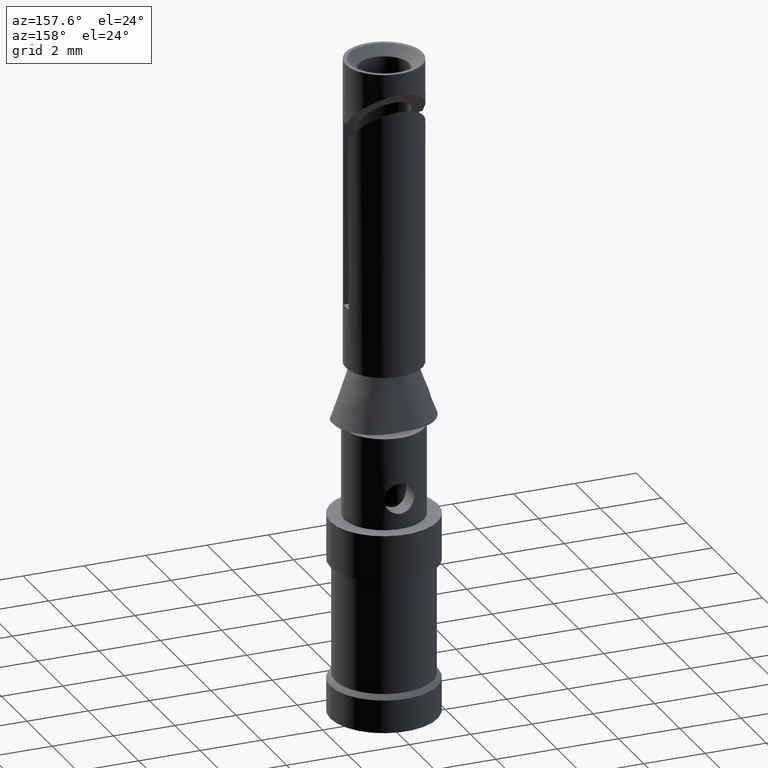
[diagram: clean part render]
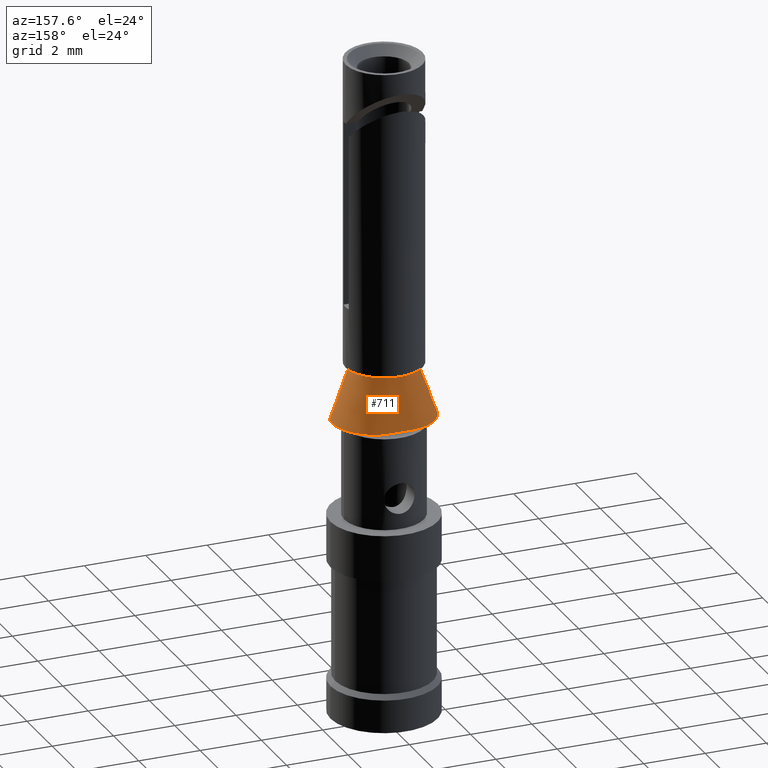
[diagram: same view with one face highlighted and labeled with its STEP entity id]
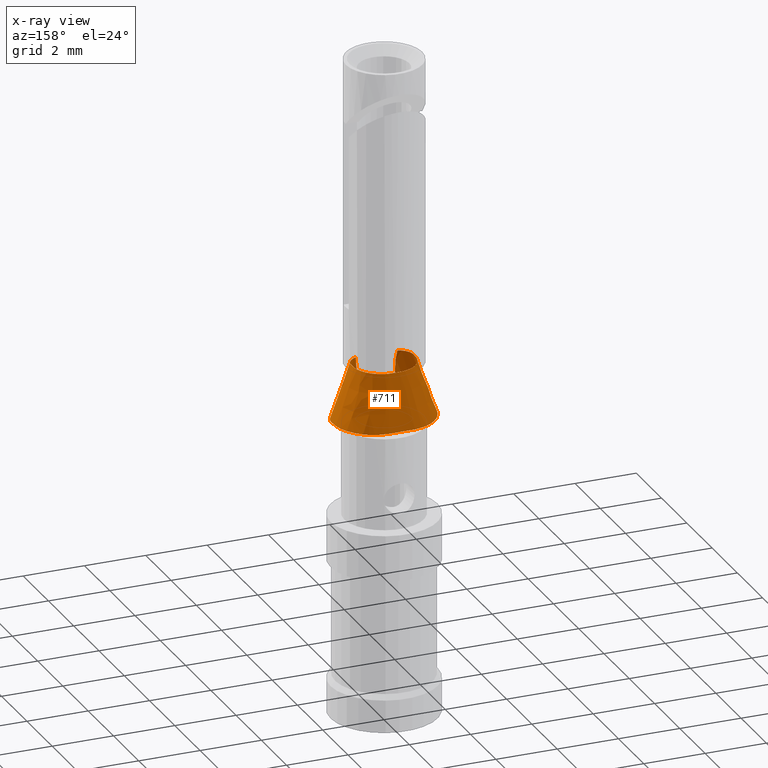
[diagram: x-ray of the same camera — body ghosted, the highlighted face saturated]
A machine part, auxiliary view. The second image highlights one B-rep face of the part: STEP entity #711.
The next image is the same camera in x-ray: the body ghosted, the highlighted face saturated — about 0% of this face is hidden behind the body in this view.
In plain terms, the highlighted face is a freeform B-spline surface patch.
Its self-contained STEP definition (entity closure, byte-faithful):
#4 = CARTESIAN_POINT ( 'NONE',  ( -0.6244022984149972810, -0.6482297917234206563, 10.90345162828931969 ) ) ;
#14 = CARTESIAN_POINT ( 'NONE',  ( -0.5658760747165321181, -0.6998458887951046759, 9.700000000000001066 ) ) ;
#15 = ORIENTED_EDGE ( 'NONE', *, *, #311, .F. ) ;
#19 = CARTESIAN_POINT ( 'NONE',  ( -1.649999999999999911, 0.3268315261956850071, 9.700000000000001066 ) ) ;
#27 = CARTESIAN_POINT ( 'NONE',  ( -0.2792942951470929747, 1.174204856776269956, 10.30000000000000071 ) ) ;
#36 = CARTESIAN_POINT ( 'NONE',  ( 1.211129613708889829, -0.3585829456435519758, 10.90000000000000036 ) ) ;
#44 = CARTESIAN_POINT ( 'NONE',  ( 0.1560608832207900087, 1.173281074190819950, 10.30000000000000071 ) ) ;
#53 = CARTESIAN_POINT ( 'NONE',  ( 1.631243486798419795, -0.4066521322335029942, 9.700000000000001066 ) ) ;
#59 = CARTESIAN_POINT ( 'NONE',  ( 0.1039459542717249968, 0.9195016958537209906, 11.50000000000000000 ) ) ;
#70 = CARTESIAN_POINT ( 'NONE',  ( 0.009583600286545628649, 0.9200648597531140283, 11.50000000000000000 ) ) ;
#73 = EDGE_CURVE ( 'NONE', #612, #1268, #117, .T. ) ;
#82 = CARTESIAN_POINT ( 'NONE',  ( 0.5982743427678378634, -0.6725986097916674122, 10.30109455095021254 ) ) ;
#88 = CARTESIAN_POINT ( 'NONE',  ( -1.018238251023239949, -0.2168791808858910042, 11.50000000000000000 ) ) ;
#94 = CARTESIAN_POINT ( 'NONE',  ( -0.9548426112374689412, -0.4071004788180560552, 11.50000000000000000 ) ) ;
#102 = CARTESIAN_POINT ( 'NONE',  ( -0.2910966783252240120, -0.6195964471698479636, 11.50000000000000000 ) ) ;
#114 = CARTESIAN_POINT ( 'NONE',  ( -0.5988719280515368837, -0.6720806211479675163, 10.30143877525372531 ) ) ;
#116 = CARTESIAN_POINT ( 'NONE',  ( -1.649999999999999911, -0.04926770854690139950, 9.700000000000001066 ) ) ;
#117 = B_SPLINE_CURVE_WITH_KNOTS ( 'NONE', 3,
 ( #608, #1152, #1710, #1021, #204, #331, #881, #1129, #751, #1300, #59, #1310, #70, #1688, #446, #995, #1551, #309, #856, #496, #1766, #898, #88, #234, #776, #804, #377 ),
 .UNSPECIFIED., .F., .F.,
 ( 4, 1, 1, 1, 1, 1, 1, 1, 1, 1, 1, 1, 1, 1, 1, 1, 1, 3, 1, 1, 1, 1, 4 ),
 ( 0.3685130491978392819, 0.3750000000000000000, 0.4375000000000000000, 0.4531250000000000000, 0.4687500000000000000, 0.5000000000000000000, 0.6250000000000000000, 0.6875000000000000000, 0.7031250000000000000, 0.7109375000000000000, 0.7187500000000000000, 0.7343750000000000000, 0.7500000000000000000, 0.7656250000000000000, 0.7812500000000000000, 0.8125000000000000000, 0.8750000000000000000, 1.000000000000000000, 1.015625000000000000, 1.031250000000000000, 1.062500000000000000, 1.093750000000000000, 1.106472548075097206 ),
 .UNSPECIFIED. ) ;
#126 = CARTESIAN_POINT ( 'NONE',  ( 0.3480592203850630395, 1.300148163450970173, 9.700000000000001066 ) ) ;
#143 = CARTESIAN_POINT ( 'NONE',  ( 0.4180002148475495116, -0.6725244066525949416, 10.30000000000000071 ) ) ;
#162 = CARTESIAN_POINT ( 'NONE',  ( 1.022686396354649974, -0.1346332957655959894, 11.50000000000000000 ) ) ;
#169 = CARTESIAN_POINT ( 'NONE',  ( 1.643062830313819944, 0.4340814706521929911, 9.700000000000001066 ) ) ;
#171 = CARTESIAN_POINT ( 'NONE',  ( 0.5664768010159152434, -0.6993597314049295743, 9.700000000000001066 ) ) ;
#175 = CARTESIAN_POINT ( 'NONE',  ( 1.232546278004489793, -0.1637888557281670099, 10.90000000000000036 ) ) ;
#185 = CARTESIAN_POINT ( 'NONE',  ( 0.1561489339925000164, 0.9180125344369129969, 11.50000000000000000 ) ) ;
#187 = CARTESIAN_POINT ( 'NONE',  ( 1.631243486798419795, -0.4066521322335029942, 9.700000000000001066 ) ) ;
#191 = CARTESIAN_POINT ( 'NONE',  ( -0.2222140538853039915, 0.9162529930834820702, 11.50000000000000000 ) ) ;
#199 = CARTESIAN_POINT ( 'NONE',  ( -0.4245828405835719854, -0.6733705083145489212, 10.30000000000000071 ) ) ;
#202 = CARTESIAN_POINT ( 'NONE',  ( 0.6760865591387643647, -0.5940597314681328456, 11.50000000000000000 ) ) ;
#204 = CARTESIAN_POINT ( 'NONE',  ( 1.022686396354649974, -0.1346332957655959894, 11.50000000000000000 ) ) ;
#207 = CARTESIAN_POINT ( 'NONE',  ( 0.6396295015618354007, -0.6332466117479136347, 11.20294166613913056 ) ) ;
#219 = CARTESIAN_POINT ( 'NONE',  ( -1.649877777813280044, -0.1551038747422870123, 9.700000000000001066 ) ) ;
#229 = CARTESIAN_POINT ( 'NONE',  ( -0.5233944830676459103, -0.6729297805031819735, 10.30000000000000071 ) ) ;
#234 = CARTESIAN_POINT ( 'NONE',  ( -0.9548426112374689412, -0.4071004788180560552, 11.50000000000000000 ) ) ;
#240 = CARTESIAN_POINT ( 'NONE',  ( -0.4163436216142530344, -0.6734050441453509617, 10.30000000000000071 ) ) ;
#253 = CARTESIAN_POINT ( 'NONE',  ( 1.001072677164130065, -0.3345483523485759947, 11.50000000000000000 ) ) ;
#264 = CARTESIAN_POINT ( 'NONE',  ( 0.6034894535520628489, -0.6993315033499739597, 9.700000000000001066 ) ) ;
#274 = CARTESIAN_POINT ( 'NONE',  ( 0.6113974843971728967, -0.6125158618111470332, 11.50000000000000000 ) ) ;
#276 = CARTESIAN_POINT ( 'NONE',  ( 0.6610084573967829336, 1.278029789696679908, 9.700000000000001066 ) ) ;
#285 = CARTESIAN_POINT ( 'NONE',  ( -0.8212958523622398976, -0.6986370208288135153, 9.700000000000001066 ) ) ;
#299 = CARTESIAN_POINT ( 'NONE',  ( 1.239906284936720171, 1.081614856832410210, 9.700000000000001066 ) ) ;
#306 = CARTESIAN_POINT ( 'NONE',  ( 0.04088616067789689612, 1.299940734619609906, 9.700000000000001066 ) ) ;
#309 = CARTESIAN_POINT ( 'NONE',  ( -0.8606088899624290134, 0.6428414602862450034, 11.50000000000000000 ) ) ;
#311 = EDGE_CURVE ( 'NONE', #1257, #1456, #572, .T. ) ;
#314 = CARTESIAN_POINT ( 'NONE',  ( -1.020000000000000018, 0.2312961570000230116, 11.50000000000000000 ) ) ;
#319 = CARTESIAN_POINT ( 'NONE',  ( 0.1853170429761709925, 1.046383851719470126, 10.90000000000000036 ) ) ;
#323 = CARTESIAN_POINT ( 'NONE',  ( 0.5664768010159152434, -0.6993597314049295743, 9.700000000000001066 ) ) ;
#328 = CARTESIAN_POINT ( 'NONE',  ( 1.652266041304170097, -0.2220999756533099945, 9.700000000000001066 ) ) ;
#331 = CARTESIAN_POINT ( 'NONE',  ( 1.018629800308839872, -0.007661216246576399262, 11.50000000000000000 ) ) ;
#343 = CARTESIAN_POINT ( 'NONE',  ( -1.584550328259719976, -0.4856194882689180425, 9.700000000000001066 ) ) ;
#353 = CARTESIAN_POINT ( 'NONE',  ( -0.8006823865948110575, -0.6493964420757379896, 10.90000000000000036 ) ) ;
#361 = CARTESIAN_POINT ( 'NONE',  ( 0.6179975953328622484, -0.6543387822370122509, 10.75219139835219728 ) ) ;
#364 = CARTESIAN_POINT ( 'NONE',  ( -1.020000000000000018, -0.02956062512814099791, 11.50000000000000000 ) ) ;
#373 = CARTESIAN_POINT ( 'NONE',  ( -0.9829738658173851062, -0.5928156017808559053, 10.90000000000000036 ) ) ;
#377 = CARTESIAN_POINT ( 'NONE',  ( -0.6797907485631572433, -0.5898173769640407960, 11.50000000000000000 ) ) ;
#387 = CARTESIAN_POINT ( 'NONE',  ( 0.3872356816381759548, -0.6456955688748369226, 10.90000000000000036 ) ) ;
#403 = ORIENTED_EDGE ( 'NONE', *, *, #1087, .F. ) ;
#407 = CARTESIAN_POINT ( 'NONE',  ( -0.6797907485631572433, -0.5898173769640407960, 11.50000000000000000 ) ) ;
#423 = CARTESIAN_POINT ( 'NONE',  ( 0.8335667985391890245, -0.5538883106539148615, 11.50000000000000000 ) ) ;
#433 = CARTESIAN_POINT ( 'NONE',  ( -0.08980136510005970463, 0.9206833536086660441, 11.50000000000000000 ) ) ;
#440 = CARTESIAN_POINT ( 'NONE',  ( 0.02001778708366270046, 1.046690151375279987, 10.90000000000000036 ) ) ;
#443 = CARTESIAN_POINT ( 'NONE',  ( 1.649304672889269963, -0.007628065150563539780, 9.700000000000001066 ) ) ;
#446 = CARTESIAN_POINT ( 'NONE',  ( -0.08980136510005970463, 0.9206833536086660441, 11.50000000000000000 ) ) ;
#450 = CARTESIAN_POINT ( 'NONE',  ( 1.224763052527809926, 0.3519379829846220331, 10.90000000000000036 ) ) ;
#459 = CARTESIAN_POINT ( 'NONE',  ( -1.020000000000000018, -0.0005765382250116539778, 11.50000000000000000 ) ) ;
#467 = CARTESIAN_POINT ( 'NONE',  ( 0.3344271679575530065, 1.172072331759559827, 10.30000000000000071 ) ) ;
#475 = CARTESIAN_POINT ( 'NONE',  ( -1.374647755918969816, -0.4594464851186299548, 10.30000000000000071 ) ) ;
#490 = CARTESIAN_POINT ( 'NONE',  ( -0.6395433854388569150, -0.6995964471698479237, 9.700000000000001066 ) ) ;
#496 = CARTESIAN_POINT ( 'NONE',  ( -1.020000000000000018, -0.0005765382250116639525, 11.50000000000000000 ) ) ;
#501 = CARTESIAN_POINT ( 'NONE',  ( -1.649999999999999911, -0.007478904686613999792, 9.700000000000001066 ) ) ;
#513 = CARTESIAN_POINT ( 'NONE',  ( -1.228757062626359975, -0.2460118384898759836, 10.90000000000000036 ) ) ;
#532 = CARTESIAN_POINT ( 'NONE',  ( -0.5658760747165321181, -0.6998458887951046759, 9.700000000000001066 ) ) ;
#536 = CARTESIAN_POINT ( 'NONE',  ( -1.416228570423510025, 0.9083629330131729462, 9.700000000000001066 ) ) ;
#541 = CARTESIAN_POINT ( 'NONE',  ( 1.029247310367439994, -0.6677016272873109726, 10.30000000000000071 ) ) ;
#547 = CARTESIAN_POINT ( 'NONE',  ( 0.5089766057400709753, -0.6993412440207130709, 9.700000000000001066 ) ) ;
#556 = CARTESIAN_POINT ( 'NONE',  ( 0.8134879842279609807, -0.6997199424516410415, 9.700000000000001066 ) ) ;
#565 = FACE_OUTER_BOUND ( 'NONE', #724, .T. ) ;
#567 = CARTESIAN_POINT ( 'NONE',  ( -0.5658760747165321181, -0.6998458887951046759, 9.700000000000001066 ) ) ;
#572 = B_SPLINE_CURVE_WITH_KNOTS ( 'NONE', 3,
 ( #567, #1120, #285, #1521, #687, #961, #952, #985, #1538, #116, #1094, #672, #536, #1644, #1503, #813, #697, #1511, #1367, #126, #680, #276, #1239, #1702, #443, #1135, #187, #1572, #1018, #1708, #1001, #878, #171 ),
 .UNSPECIFIED., .F., .F.,
 ( 4, 1, 1, 1, 1, 1, 1, 1, 3, 1, 1, 1, 1, 1, 1, 1, 1, 1, 1, 1, 1, 1, 1, 1, 1, 1, 1, 1, 4 ),
 ( 0.8150222416353040122, 0.8437500000000000000, 0.8593750000000000000, 0.8750000000000000000, 0.9062500000000000000, 0.9375000000000000000, 0.9687500000000000000, 0.9843750000000000000, 1.000000000000000000, 1.125000000000000000, 1.187500000000000000, 1.218750000000000000, 1.234375000000000000, 1.250000000000000000, 1.265625000000000000, 1.281250000000000000, 1.289062500000000000, 1.296875000000000000, 1.312500000000000000, 1.375000000000000000, 1.500000000000000000, 1.531250000000000000, 1.546875000000000000, 1.562500000000000000, 1.625000000000000000, 1.640625000000000000, 1.656250000000000000, 1.687500000000000000, 1.708699567441784195 ),
 .UNSPECIFIED. ) ;
#575 = CARTESIAN_POINT ( 'NONE',  ( 0.9024644979846530024, 0.8699881174676999951, 10.90000000000000036 ) ) ;
#584 = CARTESIAN_POINT ( 'NONE',  ( -0.3159653140711640162, 1.042403767493530031, 10.90000000000000036 ) ) ;
#594 = CARTESIAN_POINT ( 'NONE',  ( -0.1845478301235759788, 1.047444105192469888, 10.90000000000000036 ) ) ;
#604 = CARTESIAN_POINT ( 'NONE',  ( 0.4305567315020690233, 1.030146456118299803, 10.90000000000000036 ) ) ;
#608 = CARTESIAN_POINT ( 'NONE',  ( 0.6760865591387643647, -0.5940597314681328456, 11.50000000000000000 ) ) ;
#610 = CARTESIAN_POINT ( 'NONE',  ( 0.2057035000109940226, 1.299950612183010001, 9.700000000000001066 ) ) ;
#612 = VERTEX_POINT ( 'NONE', #202 ) ;
#619 = CARTESIAN_POINT ( 'NONE',  ( -1.440000000000000169, -0.005178115866079989471, 10.30000000000000071 ) ) ;
#636 = CARTESIAN_POINT ( 'NONE',  ( 0.6235620301709197122, -0.6490743910273890638, 10.90269043781157521 ) ) ;
#647 = CARTESIAN_POINT ( 'NONE',  ( -0.5091767671570910370, -0.7000591318134350427, 9.700000000000001066 ) ) ;
#650 = EDGE_CURVE ( 'NONE', #1268, #1257, #1340, .T. ) ;
#658 = ORIENTED_EDGE ( 'NONE', *, *, #73, .F. ) ;
#670 = CARTESIAN_POINT ( 'NONE',  ( 0.6844116850485819636, -0.6505700465280339628, 10.90000000000000036 ) ) ;
#672 = CARTESIAN_POINT ( 'NONE',  ( -1.649999999999999911, 0.3268315261956850071, 9.700000000000001066 ) ) ;
#677 = CARTESIAN_POINT ( 'NONE',  ( -0.6486328034974282453, -0.6257282938458458288, 11.35408490300226703 ) ) ;
#680 = CARTESIAN_POINT ( 'NONE',  ( 0.4235662849400790297, 1.299102230420879911, 9.700000000000001066 ) ) ;
#687 = CARTESIAN_POINT ( 'NONE',  ( -1.234435919091480205, -0.7028695691838929838, 9.700000000000001066 ) ) ;
#697 = CARTESIAN_POINT ( 'NONE',  ( -0.1461460298990309992, 1.299773414255080084, 9.700000000000001066 ) ) ;
#711 = ADVANCED_FACE ( 'NONE', ( #565 ), #810, .F. ) ;
#714 = CARTESIAN_POINT ( 'NONE',  ( -1.229999999999999982, 0.2631412800652440098, 10.90000000000000036 ) ) ;
#722 = CARTESIAN_POINT ( 'NONE',  ( 1.442406159654330056, -0.1929444156907380026, 10.30000000000000071 ) ) ;
#724 = EDGE_LOOP ( 'NONE', ( #1522, #658, #403, #15 ) ) ;
#731 = CARTESIAN_POINT ( 'NONE',  ( -0.5616760257484829655, 0.9948658929075850921, 10.90000000000000036 ) ) ;
#739 = CARTESIAN_POINT ( 'NONE',  ( 0.2666881316806170577, 1.173266007585220150, 10.30000000000000071 ) ) ;
#747 = CARTESIAN_POINT ( 'NONE',  ( -0.4097165742570240132, 1.168554541903570110, 10.30000000000000071 ) ) ;
#751 = CARTESIAN_POINT ( 'NONE',  ( 0.3153308685547119850, 0.9062047893291139689, 11.50000000000000000 ) ) ;
#754 = CARTESIAN_POINT ( 'NONE',  ( -0.5192158885800339796, -0.7000256213229120172, 9.700000000000001066 ) ) ;
#763 = CARTESIAN_POINT ( 'NONE',  ( -1.234435919091480205, -0.7028695691838929838, 9.700000000000001066 ) ) ;
#770 = CARTESIAN_POINT ( 'NONE',  ( -1.440828300123879968, -0.1330858058338840189, 10.30000000000000071 ) ) ;
#776 = CARTESIAN_POINT ( 'NONE',  ( -0.8090078715206256987, -0.5351654678931950793, 11.50000000000000000 ) ) ;
#780 = CARTESIAN_POINT ( 'NONE',  ( -1.649999999999999911, -0.04926770854690139950, 9.700000000000001066 ) ) ;
#797 = B_SPLINE_CURVE_WITH_KNOTS ( 'NONE', 3,
 ( #1585, #1180, #82, #361, #636, #207, #1722, #1742 ),
 .UNSPECIFIED., .F., .F.,
 ( 4, 2, 2, 4 ),
 ( 0.000000000000000000, 0.0009037889645845815752, 0.001355683446876872417, 0.001807577929169163150 ),
 .UNSPECIFIED. ) ;
#804 = CARTESIAN_POINT ( 'NONE',  ( -0.7087807324624130212, -0.5795144333903139433, 11.50000000000000000 ) ) ;
#810 = B_SPLINE_SURFACE_WITH_KNOTS ( 'NONE', 3, 3, ( 
 ( #1382, #1092, #143, #547 ),
 ( #1781, #387, #821, #264 ),
 ( #967, #1508, #1243, #556 ),
 ( #1110, #670, #1527, #1657 ),
 ( #274, #1100, #541, #1666 ),
 ( #423, #974, #940, #1492 ),
 ( #253, #36, #1535, #53 ),
 ( #162, #175, #722, #328 ),
 ( #1570, #990, #1260, #1277 ),
 ( #1562, #450, #1556, #169 ),
 ( #1428, #575, #1435, #299 ),
 ( #1133, #604, #1288, #1546 ),
 ( #185, #868, #467, #1008 ),
 ( #1412, #319, #739, #860 ),
 ( #1125, #877, #44, #610 ),
 ( #1681, #440, #1269, #306 ),
 ( #1149, #1420, #1707, #1017 ),
 ( #433, #594, #27, #1143 ),
 ( #191, #584, #747, #1699 ),
 ( #1693, #731, #1296, #852 ),
 ( #1674, #999, #982, #843 ),
 ( #314, #714, #1402, #19 ),
 ( #459, #1442, #619, #501 ),
 ( #364, #1313, #1053, #780 ),
 ( #1156, #1032, #770, #219 ),
 ( #1714, #513, #1332, #1586 ),
 ( #94, #1621, #475, #343 ),
 ( #1321, #373, #1023, #1062 ),
 ( #894, #353, #1480, #763 ),
 ( #1598, #1166, #926, #1183 ),
 ( #1745, #1611, #1343, #915 ),
 ( #102, #1472, #229, #490 ),
 ( #1305, #1577, #199, #754 ),
 ( #906, #1723, #240, #647 ) ),
 .UNSPECIFIED., .F., .F., .F.,
 ( 4, 1, 1, 1, 1, 1, 1, 1, 1, 1, 1, 1, 1, 1, 1, 1, 1, 1, 1, 1, 3, 1, 1, 1, 1, 1, 1, 1, 1, 4 ),
 ( 4, 4 ),
 ( 0.2859383686033770133, 0.3125000000000000000, 0.3437500000000000000, 0.3593750000000000000, 0.3750000000000000000, 0.4375000000000000000, 0.4531250000000000000, 0.4687500000000000000, 0.5000000000000000000, 0.6250000000000000000, 0.6875000000000000000, 0.7031250000000000000, 0.7109375000000000000, 0.7187500000000000000, 0.7343750000000000000, 0.7500000000000000000, 0.7656250000000000000, 0.7812500000000000000, 0.8125000000000000000, 0.8750000000000000000, 1.000000000000000000, 1.015625000000000000, 1.031250000000000000, 1.062500000000000000, 1.093750000000000000, 1.125000000000000000, 1.140625000000000000, 1.156250000000000000, 1.187500000000000000, 1.190339822319534058 ),
 ( 0.000000000000000000, 1.000000000000000000 ),
 .UNSPECIFIED. ) ;
#811 = CARTESIAN_POINT ( 'NONE',  ( -0.5827480146370130898, -0.6862037037256309979, 10.00070632027981610 ) ) ;
#813 = CARTESIAN_POINT ( 'NONE',  ( -0.3740407601706099983, 1.300965608360070025, 9.700000000000001066 ) ) ;
#821 = CARTESIAN_POINT ( 'NONE',  ( 0.4953625675951189855, -0.6725135361124060518, 10.30000000000000071 ) ) ;
#836 = CARTESIAN_POINT ( 'NONE',  ( -0.6191390763081162651, -0.6532624212910399519, 10.75282040772160919 ) ) ;
#843 = CARTESIAN_POINT ( 'NONE',  ( -1.416228570423510025, 0.9083629330131729462, 9.700000000000001066 ) ) ;
#852 = CARTESIAN_POINT ( 'NONE',  ( -0.8274268525170930255, 1.235661459343819990, 9.700000000000001066 ) ) ;
#856 = CARTESIAN_POINT ( 'NONE',  ( -1.020000000000000018, 0.2312961570000230116, 11.50000000000000000 ) ) ;
#860 = CARTESIAN_POINT ( 'NONE',  ( 0.3480592203850630395, 1.300148163450970173, 9.700000000000001066 ) ) ;
#868 = CARTESIAN_POINT ( 'NONE',  ( 0.2452880509750270110, 1.045042433098239965, 10.90000000000000036 ) ) ;
#877 = CARTESIAN_POINT ( 'NONE',  ( 0.1064182664305869941, 1.046611536198620129, 10.90000000000000036 ) ) ;
#878 = CARTESIAN_POINT ( 'NONE',  ( 0.6426265597952148800, -0.6994180477813084496, 9.700000000000001066 ) ) ;
#881 = CARTESIAN_POINT ( 'NONE',  ( 1.015613163634800031, 0.3108662391508369982, 11.50000000000000000 ) ) ;
#894 = CARTESIAN_POINT ( 'NONE',  ( -0.5838056203464749849, -0.6226598785216599374, 11.50000000000000000 ) ) ;
#898 = CARTESIAN_POINT ( 'NONE',  ( -1.022729344745099800, -0.08904966801707589474, 11.50000000000000000 ) ) ;
#906 = CARTESIAN_POINT ( 'NONE',  ( -0.2306773305285770015, -0.6200968688091820225, 11.50000000000000000 ) ) ;
#915 = CARTESIAN_POINT ( 'NONE',  ( -0.8114831823090280505, -0.6984814587036091149, 9.700000000000001066 ) ) ;
#926 = CARTESIAN_POINT ( 'NONE',  ( -0.8583615532787840507, -0.6756695507123959832, 10.30000000000000071 ) ) ;
#940 = CARTESIAN_POINT ( 'NONE',  ( 1.255691816967819952, -0.6058892677999739851, 10.30000000000000071 ) ) ;
#952 = CARTESIAN_POINT ( 'NONE',  ( -1.584550328259719976, -0.4856194882689180425, 9.700000000000001066 ) ) ;
#961 = CARTESIAN_POINT ( 'NONE',  ( -1.402744583574590198, -0.6450305849156170446, 9.700000000000001066 ) ) ;
#967 = CARTESIAN_POINT ( 'NONE',  ( 0.3706046114481720277, -0.6196041702497510073, 11.50000000000000000 ) ) ;
#974 = CARTESIAN_POINT ( 'NONE',  ( 1.044629307753499825, -0.5798887892269439792, 10.90000000000000036 ) ) ;
#982 = CARTESIAN_POINT ( 'NONE',  ( -1.231022010269819944, 0.8198557754375300766, 10.30000000000000071 ) ) ;
#985 = CARTESIAN_POINT ( 'NONE',  ( -1.649794685832600027, -0.3042771536978470248, 9.700000000000001066 ) ) ;
#990 = CARTESIAN_POINT ( 'NONE',  ( 1.228854757835649902, -0.007650165881238781170, 10.90000000000000036 ) ) ;
#995 = CARTESIAN_POINT ( 'NONE',  ( -0.2222140538853039915, 0.9162529930834820702, 11.50000000000000000 ) ) ;
#999 = CARTESIAN_POINT ( 'NONE',  ( -1.045815450116120093, 0.7313486178618868738, 10.90000000000000036 ) ) ;
#1001 = CARTESIAN_POINT ( 'NONE',  ( 0.8349290583457062986, -0.6999121796949373531, 9.700000000000001066 ) ) ;
#1008 = CARTESIAN_POINT ( 'NONE',  ( 0.4235662849400790297, 1.299102230420879911, 9.700000000000001066 ) ) ;
#1017 = CARTESIAN_POINT ( 'NONE',  ( -0.1461460298990309992, 1.299773414255080084, 9.700000000000001066 ) ) ;
#1018 = CARTESIAN_POINT ( 'NONE',  ( 1.238172223352580037, -0.6952945100253919986, 9.700000000000001066 ) ) ;
#1021 = CARTESIAN_POINT ( 'NONE',  ( 1.001072677164130065, -0.3345483523485759947, 11.50000000000000000 ) ) ;
#1023 = CARTESIAN_POINT ( 'NONE',  ( -1.192859224695989928, -0.6189230933482360308, 10.30000000000000071 ) ) ;
#1032 = CARTESIAN_POINT ( 'NONE',  ( -1.231778822434489884, -0.1110677369254799984, 10.90000000000000036 ) ) ;
#1053 = CARTESIAN_POINT ( 'NONE',  ( -1.440000000000000169, -0.04269868074064799707, 10.30000000000000071 ) ) ;
#1062 = CARTESIAN_POINT ( 'NONE',  ( -1.402744583574590198, -0.6450305849156170446, 9.700000000000001066 ) ) ;
#1087 = EDGE_CURVE ( 'NONE', #1456, #612, #797, .T. ) ;
#1092 = CARTESIAN_POINT ( 'NONE',  ( 0.3270238239550269932, -0.6457075692844760351, 10.90000000000000036 ) ) ;
#1094 = CARTESIAN_POINT ( 'NONE',  ( -1.649999999999999911, -0.007478904686613999792, 9.700000000000001066 ) ) ;
#1100 = CARTESIAN_POINT ( 'NONE',  ( 0.8203223973823089432, -0.6401087445492289474, 10.90000000000000036 ) ) ;
#1110 = CARTESIAN_POINT ( 'NONE',  ( 0.4730494514873100353, -0.6246786972983989772, 11.50000000000000000 ) ) ;
#1120 = CARTESIAN_POINT ( 'NONE',  ( -0.6668700487358043549, -0.6994310346955024960, 9.700000000000002842 ) ) ;
#1125 = CARTESIAN_POINT ( 'NONE',  ( 0.05677564964038300105, 0.9199419982064300783, 11.50000000000000000 ) ) ;
#1129 = CARTESIAN_POINT ( 'NONE',  ( 0.7337436045086210834, 0.7641747477853449988, 11.50000000000000000 ) ) ;
#1133 = CARTESIAN_POINT ( 'NONE',  ( 0.3153308685547119850, 0.9062047893291139689, 11.50000000000000000 ) ) ;
#1135 = CARTESIAN_POINT ( 'NONE',  ( 1.652266041304170097, -0.2220999756533099945, 9.700000000000001066 ) ) ;
#1143 = CARTESIAN_POINT ( 'NONE',  ( -0.3740407601706099983, 1.300965608360070025, 9.700000000000001066 ) ) ;
#1149 = CARTESIAN_POINT ( 'NONE',  ( -0.04549832444582410651, 0.9198129466595550419, 11.50000000000000000 ) ) ;
#1152 = CARTESIAN_POINT ( 'NONE',  ( 0.6911132896277153437, -0.5894831587418055685, 11.49999999999999822 ) ) ;
#1156 = CARTESIAN_POINT ( 'NONE',  ( -1.022729344745099800, -0.08904966801707589474, 11.50000000000000000 ) ) ;
#1166 = CARTESIAN_POINT ( 'NONE',  ( -0.6620864254951059902, -0.6490028840457290338, 10.90000000000000036 ) ) ;
#1180 = CARTESIAN_POINT ( 'NONE',  ( 0.5829913107707177522, -0.6859830866881203582, 10.00051329046421067 ) ) ;
#1183 = CARTESIAN_POINT ( 'NONE',  ( -1.054636681062459891, -0.7023362173790620444, 9.700000000000001066 ) ) ;
#1239 = CARTESIAN_POINT ( 'NONE',  ( 1.239906284936720171, 1.081614856832410210, 9.700000000000001066 ) ) ;
#1243 = CARTESIAN_POINT ( 'NONE',  ( 0.6658601933013639229, -0.6730146850510109191, 10.30000000000000071 ) ) ;
#1257 = VERTEX_POINT ( 'NONE', #14 ) ;
#1260 = CARTESIAN_POINT ( 'NONE',  ( 1.439079715362459932, -0.007639115515901159607, 10.30000000000000071 ) ) ;
#1268 = VERTEX_POINT ( 'NONE', #1627 ) ;
#1269 = CARTESIAN_POINT ( 'NONE',  ( 0.03045197388077980349, 1.173315442997449942, 10.30000000000000071 ) ) ;
#1277 = CARTESIAN_POINT ( 'NONE',  ( 1.649304672889269963, -0.007628065150563539780, 9.700000000000001066 ) ) ;
#1288 = CARTESIAN_POINT ( 'NONE',  ( 0.5457825944494260062, 1.154088122907489966, 10.30000000000000071 ) ) ;
#1296 = CARTESIAN_POINT ( 'NONE',  ( -0.6945514391327880510, 1.115263676125699988, 10.30000000000000071 ) ) ;
#1300 = CARTESIAN_POINT ( 'NONE',  ( 0.1561489339925000164, 0.9180125344369129969, 11.50000000000000000 ) ) ;
#1305 = CARTESIAN_POINT ( 'NONE',  ( -0.2353167445906489963, -0.6200602822978240614, 11.50000000000000000 ) ) ;
#1310 = CARTESIAN_POINT ( 'NONE',  ( 0.05677564964038300105, 0.9199419982064300783, 11.50000000000000000 ) ) ;
#1313 = CARTESIAN_POINT ( 'NONE',  ( -1.229999999999999982, -0.03612965293439449749, 10.90000000000000036 ) ) ;
#1321 = CARTESIAN_POINT ( 'NONE',  ( -0.7730885069387840591, -0.5667081102134748916, 11.50000000000000000 ) ) ;
#1332 = CARTESIAN_POINT ( 'NONE',  ( -1.439275874229480001, -0.2751444960938619344, 10.30000000000000071 ) ) ;
#1340 = B_SPLINE_CURVE_WITH_KNOTS ( 'NONE', 3,
 ( #407, #677, #1772, #4, #836, #114, #811, #532 ),
 .UNSPECIFIED., .F., .F.,
 ( 4, 2, 2, 4 ),
 ( 7.336276252151298236E-17, 0.0004514015910456261617, 0.0009028031820911790314, 0.001805606364182284554 ),
 .UNSPECIFIED. ) ;
#1343 = CARTESIAN_POINT ( 'NONE',  ( -0.6656973412380519095, -0.6718147920369430537, 10.30000000000000071 ) ) ;
#1367 = CARTESIAN_POINT ( 'NONE',  ( 0.2057035000109940226, 1.299950612183010001, 9.700000000000001066 ) ) ;
#1382 = CARTESIAN_POINT ( 'NONE',  ( 0.2360474330625060013, -0.6188907319163580167, 11.50000000000000000 ) ) ;
#1402 = CARTESIAN_POINT ( 'NONE',  ( -1.440000000000000169, 0.2949864031304639811, 10.30000000000000071 ) ) ;
#1412 = CARTESIAN_POINT ( 'NONE',  ( 0.1039459542717249968, 0.9195016958537209906, 11.50000000000000000 ) ) ;
#1420 = CARTESIAN_POINT ( 'NONE',  ( -0.07904755959689299671, 1.046466435858059985, 10.90000000000000036 ) ) ;
#1428 = CARTESIAN_POINT ( 'NONE',  ( 0.7337436045086210834, 0.7641747477853449988, 11.50000000000000000 ) ) ;
#1435 = CARTESIAN_POINT ( 'NONE',  ( 1.071185391460690139, 0.9758014871500559906, 10.30000000000000071 ) ) ;
#1442 = CARTESIAN_POINT ( 'NONE',  ( -1.229999999999999982, -0.002877327045545760142, 10.90000000000000036 ) ) ;
#1456 = VERTEX_POINT ( 'NONE', #323 ) ;
#1472 = CARTESIAN_POINT ( 'NONE',  ( -0.4072455806964349612, -0.6462631138365150241, 10.90000000000000036 ) ) ;
#1480 = CARTESIAN_POINT ( 'NONE',  ( -1.017559152843150017, -0.6761330056298149316, 10.30000000000000071 ) ) ;
#1492 = CARTESIAN_POINT ( 'NONE',  ( 1.466754326182129864, -0.6318897463730039910, 9.700000000000001066 ) ) ;
#1503 = CARTESIAN_POINT ( 'NONE',  ( -0.5034678344428850094, 1.294705316313619958, 9.700000000000001066 ) ) ;
#1508 = CARTESIAN_POINT ( 'NONE',  ( 0.5182324023747680863, -0.6463094276503810187, 10.90000000000000036 ) ) ;
#1511 = CARTESIAN_POINT ( 'NONE',  ( 0.04088616067789689612, 1.299940734619609906, 9.700000000000001066 ) ) ;
#1521 = CARTESIAN_POINT ( 'NONE',  ( -1.054636681062459891, -0.7023362173790620444, 9.700000000000001066 ) ) ;
#1522 = ORIENTED_EDGE ( 'NONE', *, *, #650, .F. ) ;
#1527 = CARTESIAN_POINT ( 'NONE',  ( 0.8957739186098540030, -0.6764613957576689485, 10.30000000000000071 ) ) ;
#1535 = CARTESIAN_POINT ( 'NONE',  ( 1.421186550253660030, -0.3826175389385269576, 10.30000000000000071 ) ) ;
#1538 = CARTESIAN_POINT ( 'NONE',  ( -1.649877777813280044, -0.1551038747422870123, 9.700000000000001066 ) ) ;
#1546 = CARTESIAN_POINT ( 'NONE',  ( 0.6610084573967829336, 1.278029789696679908, 9.700000000000001066 ) ) ;
#1551 = CARTESIAN_POINT ( 'NONE',  ( -0.4288006123641779910, 0.8744681096894689754, 11.50000000000000000 ) ) ;
#1556 = CARTESIAN_POINT ( 'NONE',  ( 1.433912941420820042, 0.3930097268184080117, 10.30000000000000071 ) ) ;
#1562 = CARTESIAN_POINT ( 'NONE',  ( 1.015613163634800031, 0.3108662391508369982, 11.50000000000000000 ) ) ;
#1570 = CARTESIAN_POINT ( 'NONE',  ( 1.018629800308839872, -0.007661216246576399262, 11.50000000000000000 ) ) ;
#1572 = CARTESIAN_POINT ( 'NONE',  ( 1.466754326182129864, -0.6318897463730039910, 9.700000000000001066 ) ) ;
#1577 = CARTESIAN_POINT ( 'NONE',  ( -0.3299497925871109905, -0.6467153953061859362, 10.90000000000000036 ) ) ;
#1585 = CARTESIAN_POINT ( 'NONE',  ( 0.5664768010159152434, -0.6993597314049295743, 9.700000000000001066 ) ) ;
#1586 = CARTESIAN_POINT ( 'NONE',  ( -1.649794685832600027, -0.3042771536978470248, 9.700000000000001066 ) ) ;
#1598 = CARTESIAN_POINT ( 'NONE',  ( -0.4658112977114270414, -0.6223362173790620844, 11.50000000000000000 ) ) ;
#1611 = CARTESIAN_POINT ( 'NONE',  ( -0.5199115001670759906, -0.6451481253702759933, 10.90000000000000036 ) ) ;
#1621 = CARTESIAN_POINT ( 'NONE',  ( -1.164745183578219878, -0.4332734819683429772, 10.90000000000000036 ) ) ;
#1627 = CARTESIAN_POINT ( 'NONE',  ( -0.6797907485631572433, -0.5898173769640407960, 11.50000000000000000 ) ) ;
#1644 = CARTESIAN_POINT ( 'NONE',  ( -0.8274268525170930255, 1.235661459343819990, 9.700000000000001066 ) ) ;
#1657 = CARTESIAN_POINT ( 'NONE',  ( 1.107136152171130039, -0.7023527449873040451, 9.700000000000001066 ) ) ;
#1666 = CARTESIAN_POINT ( 'NONE',  ( 1.238172223352580037, -0.6952945100253919986, 9.700000000000001066 ) ) ;
#1674 = CARTESIAN_POINT ( 'NONE',  ( -0.8606088899624290134, 0.6428414602862450034, 11.50000000000000000 ) ) ;
#1681 = CARTESIAN_POINT ( 'NONE',  ( 0.009583600286545628649, 0.9200648597531140283, 11.50000000000000000 ) ) ;
#1688 = CARTESIAN_POINT ( 'NONE',  ( -0.04549832444582410651, 0.9198129466595550419, 11.50000000000000000 ) ) ;
#1693 = CARTESIAN_POINT ( 'NONE',  ( -0.4288006123641779910, 0.8744681096894689754, 11.50000000000000000 ) ) ;
#1699 = CARTESIAN_POINT ( 'NONE',  ( -0.5034678344428850094, 1.294705316313619958, 9.700000000000001066 ) ) ;
#1702 = CARTESIAN_POINT ( 'NONE',  ( 1.643062830313819944, 0.4340814706521929911, 9.700000000000001066 ) ) ;
#1707 = CARTESIAN_POINT ( 'NONE',  ( -0.1125967947479619979, 1.173119925056570034, 10.30000000000000071 ) ) ;
#1708 = CARTESIAN_POINT ( 'NONE',  ( 1.107136152171130039, -0.7023527449873040451, 9.700000000000001066 ) ) ;
#1710 = CARTESIAN_POINT ( 'NONE',  ( 0.8498940194437437645, -0.5325086911334221407, 11.50000000000000000 ) ) ;
#1714 = CARTESIAN_POINT ( 'NONE',  ( -1.018238251023239949, -0.2168791808858910042, 11.50000000000000000 ) ) ;
#1722 = CARTESIAN_POINT ( 'NONE',  ( 0.6493395455058401655, -0.6244999304184519762, 11.35288511833157621 ) ) ;
#1723 = CARTESIAN_POINT ( 'NONE',  ( -0.3235104760714154759, -0.6467509564772668806, 10.90000000000000036 ) ) ;
#1742 = CARTESIAN_POINT ( 'NONE',  ( 0.6760865591387643647, -0.5940597314681328456, 11.50000000000000000 ) ) ;
#1745 = CARTESIAN_POINT ( 'NONE',  ( -0.3741256590961000161, -0.6184814587036090439, 11.50000000000000000 ) ) ;
#1766 = CARTESIAN_POINT ( 'NONE',  ( -1.020000000000000018, -0.02956062512814099791, 11.50000000000000000 ) ) ;
#1772 = CARTESIAN_POINT ( 'NONE',  ( -0.6371693710023307311, -0.6356848950543142474, 11.20435850093999619 ) ) ;
#1781 = CARTESIAN_POINT ( 'NONE',  ( 0.2791087956812334792, -0.6188776016372699029, 11.50000000000000000 ) ) ;